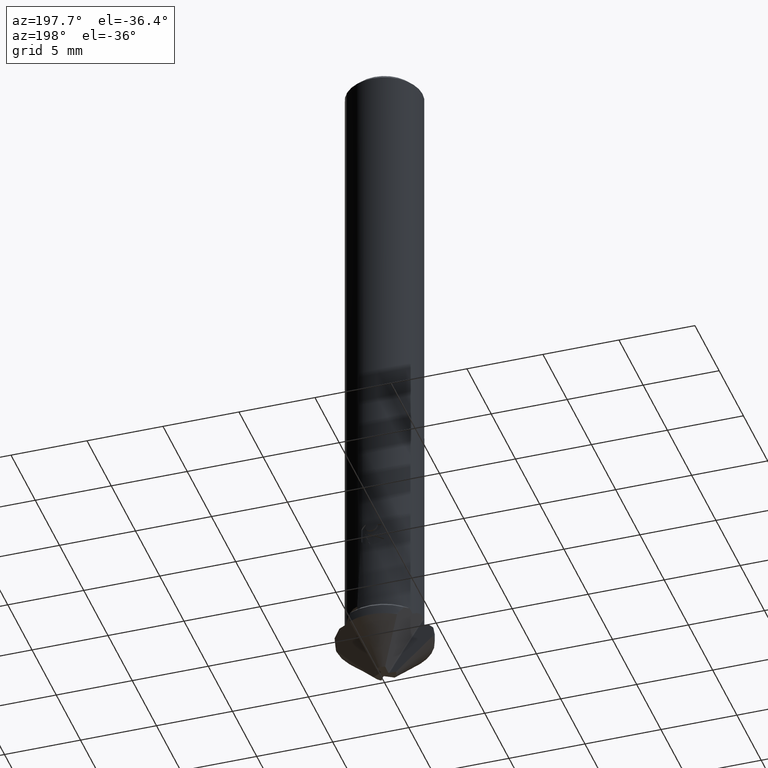
[diagram: clean part render]
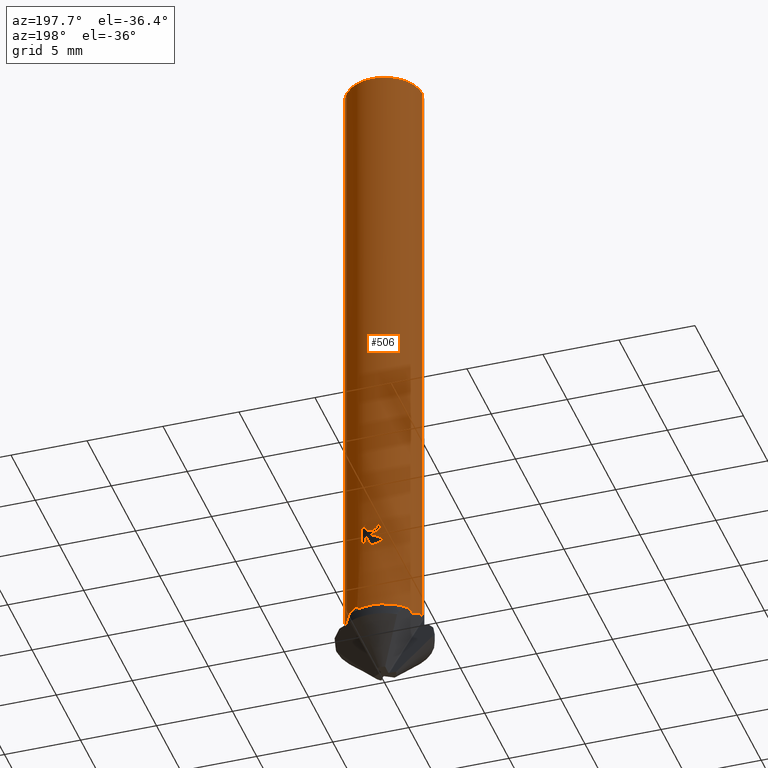
[diagram: same view with one face highlighted and labeled with its STEP entity id]
A machine part, auxiliary view. The second image highlights one B-rep face of the part: STEP entity #506.
In plain terms, the highlighted cylindrical surface (partial cylindrical patch) has radius 2.5 mm, axis along (-0, -0, 1).
Its self-contained STEP definition (entity closure, byte-faithful):
#468=EDGE_CURVE('',#576,#474,#1333,.T.);
#474=VERTEX_POINT('',#1339);
#488=EDGE_CURVE('',#936,#922,#1353,.T.);
#506=ADVANCED_FACE('',(#1371,#1372),#1373,.T.);
#560=VERTEX_POINT('',#1433);
#570=VERTEX_POINT('',#1443);
#576=VERTEX_POINT('',#1450);
#636=EDGE_CURVE('',#1162,#1082,#1516,.T.);
#638=VERTEX_POINT('',#1518);
#650=EDGE_CURVE('',#1196,#904,#1533,.T.);
#676=EDGE_CURVE('',#922,#966,#1560,.T.);
#750=EDGE_CURVE('',#1188,#1196,#1642,.T.);
#758=EDGE_CURVE('',#1116,#1120,#1651,.T.);
#760=EDGE_CURVE('',#1290,#1188,#1653,.T.);
#764=EDGE_CURVE('',#864,#560,#1657,.T.);
#782=EDGE_CURVE('',#560,#570,#1676,.T.);
#796=EDGE_CURVE('',#1004,#1116,#1692,.T.);
#838=VERTEX_POINT('',#1738);
#842=VERTEX_POINT('',#1742);
#864=VERTEX_POINT('',#1765);
#904=VERTEX_POINT('',#1808);
#922=VERTEX_POINT('',#1826);
#928=EDGE_CURVE('',#842,#1240,#1832,.T.);
#936=VERTEX_POINT('',#1841);
#956=EDGE_CURVE('',#1026,#1290,#1861,.T.);
#966=VERTEX_POINT('',#1874);
#1004=VERTEX_POINT('',#1913);
#1026=VERTEX_POINT('',#1937);
#1082=VERTEX_POINT('',#1996);
#1088=EDGE_CURVE('',#1170,#570,#2002,.T.);
#1098=EDGE_CURVE('',#904,#1162,#2012,.T.);
#1116=VERTEX_POINT('',#2032);
#1120=VERTEX_POINT('',#2037);
#1146=EDGE_CURVE('',#1158,#838,#2066,.T.);
#1158=VERTEX_POINT('',#2080);
#1162=VERTEX_POINT('',#2084);
#1170=VERTEX_POINT('',#2092);
#1172=EDGE_CURVE('',#474,#842,#2094,.T.);
#1178=EDGE_CURVE('',#638,#838,#2101,.T.);
#1188=VERTEX_POINT('',#2112);
#1196=VERTEX_POINT('',#2122);
#1216=EDGE_CURVE('',#638,#1170,#2146,.T.);
#1230=EDGE_CURVE('',#1082,#936,#2161,.T.);
#1240=VERTEX_POINT('',#2172);
#1250=EDGE_CURVE('',#864,#1004,#2184,.T.);
#1260=EDGE_CURVE('',#1240,#1026,#2194,.T.);
#1278=EDGE_CURVE('',#966,#576,#2214,.T.);
#1280=EDGE_CURVE('',#1158,#1120,#2216,.T.);
#1290=VERTEX_POINT('',#2227);
#1333=B_SPLINE_CURVE_WITH_KNOTS('',3,(#2293,#2294,#2295,#2296,#2297,#2298,#2299,#2300,#2301,#2302),.UNSPECIFIED.,.F.,.F.,(4,2,2,2,4),(3.09837550339328,3.44278385228406,3.78723916731241,4.13169448234076,4.47551218078378),.UNSPECIFIED.);
#1339=CARTESIAN_POINT('',(0.161168404231131,2.49479954013897,-36.6665738361236));
#1353=B_SPLINE_CURVE_WITH_KNOTS('',3,(#2353,#2354,#2355,#2356,#2357,#2358,#2359,#2360,#2361,#2362,#2363,#2364,#2365,#2366),.UNSPECIFIED.,.F.,.F.,(4,2,2,2,2,2,4),(1.7426107460822,1.9913632153039,2.24011568452559,2.48886815374729,2.73698656585005,2.98510497795281,3.23493590836227),.UNSPECIFIED.);
#1371=FACE_OUTER_BOUND('',#2392,.T.);
#1372=FACE_BOUND('',#2393,.T.);
#1373=CYLINDRICAL_SURFACE('',#2394,2.5);
#1433=CARTESIAN_POINT('',(2.5,3.06151588455594E-016,-41.64));
#1443=CARTESIAN_POINT('',(2.5,3.06151588455594E-016,-0.399999999999999));
#1450=CARTESIAN_POINT('',(-9.27653320671539E-016,2.5,-36.683902981203));
#1516=CIRCLE('',#2700,2.5);
#1518=CARTESIAN_POINT('',(-2.5,-3.06151588455594E-016,-0.399999999999999));
#1533=B_SPLINE_CURVE_WITH_KNOTS('',3,(#2718,#2719,#2720,#2721,#2722,#2723,#2724,#2725,#2726,#2727,#2728,#2729,#2730,#2731,#2732,#2733,#2734,#2735,#2736,#2737,#2738,#2739,#2740,#2741,#2742,#2743,#2744),.UNSPECIFIED.,.F.,.F.,(4,2,3,2,2,2,2,2,2,2,2,2,4),(-0.301503278454075,-0.150751639227038,0.0,0.150751639227038,0.301503278454075,0.452645086780626,0.603786895107177,0.754271619615112,0.904756344123047,1.05543488838393,1.20611343264482,1.35679197690571,1.5074705211666),.UNSPECIFIED.);
#1560=ELLIPSE('',#2778,2.78732108010715,2.5);
#1642=B_SPLINE_CURVE_WITH_KNOTS('',3,(#2970,#2971,#2972,#2973,#2974,#2975,#2976,#2977,#2978,#2979,#2980,#2981,#2982,#2983,#2984,#2985,#2986,#2987,#2988,#2989,#2990,#2991,#2992,#2993,#2994,#2995,#2996),.UNSPECIFIED.,.F.,.F.,(4,2,3,2,2,2,2,2,2,2,2,2,4),(-0.301503278454075,-0.150751639227038,0.0,0.150751639227038,0.301503278454075,0.452645086780626,0.603786895107177,0.754271619615112,0.904756344123047,1.05543488838393,1.20611343264482,1.35679197690571,1.5074705211666),.UNSPECIFIED.);
#1651=ELLIPSE('',#3009,71.6342708696101,2.5);
#1653=B_SPLINE_CURVE_WITH_KNOTS('',3,(#3012,#3013,#3014,#3015,#3016,#3017),.UNSPECIFIED.,.F.,.F.,(4,2,4),(0.344302197119824,0.688604394239647,1.03242207268003),.UNSPECIFIED.);
#1657=CIRCLE('',#3023,2.5);
#1676=LINE('',#3048,#3049);
#1692=B_SPLINE_CURVE_WITH_KNOTS('',3,(#3067,#3068,#3069,#3070,#3071,#3072,#3073,#3074,#3075,#3076,#3077,#3078,#3079,#3080),.UNSPECIFIED.,.F.,.F.,(4,2,2,2,2,2,4),(0.184157600930737,0.192742132728682,0.206598262560849,0.234310522225183,0.293125424812681,0.351940327400179,0.362202442003439),.UNSPECIFIED.);
#1738=CARTESIAN_POINT('',(-2.5,-1.18046230048316E-016,-41.1100794319298));
#1742=CARTESIAN_POINT('',(0.485311546392265,2.45244219155893,-35.7332739790272));
#1765=CARTESIAN_POINT('',(2.11553267240892,1.33211167398622,-41.64));
#1808=CARTESIAN_POINT('',(-0.270210525197664,2.48535435543353,-35.3573798608818));
#1826=CARTESIAN_POINT('',(0.318403909431595,2.47964089143139,-35.7946277612708));
#1832=LINE('',#3326,#3327);
#1841=CARTESIAN_POINT('',(2.94648960573711E-016,2.5,-35.8333778656602));
#1861=LINE('',#3438,#3439);
#1874=CARTESIAN_POINT('',(-0.742807086176167,2.38709816151881,-36.3178224420131));
#1913=CARTESIAN_POINT('',(1.11945875477982,2.23535502691336,-41.1139234402125));
#1937=CARTESIAN_POINT('',(0.742894482122777,2.38707096426385,-36.2723142805034));
#1996=CARTESIAN_POINT('',(-0.575040781099412,2.43296693361677,-35.1761789996285));
#2002=CIRCLE('',#3787,2.5);
#2012=B_SPLINE_CURVE_WITH_KNOTS('',3,(#3813,#3814,#3815,#3816,#3817,#3818,#3819,#3820,#3821,#3822,#3823,#3824,#3825,#3826,#3827,#3828,#3829,#3830,#3831,#3832,#3833,#3834,#3835,#3836,#3837,#3838,#3839),.UNSPECIFIED.,.F.,.F.,(4,2,3,2,2,2,2,2,2,2,2,2,4),(-0.301503278454075,-0.150751639227038,0.0,0.150751639227038,0.301503278454075,0.452645086780626,0.603786895107177,0.754271619615112,0.904756344123047,1.05543488838393,1.20611343264482,1.35679197690571,1.5074705211666),.UNSPECIFIED.);
#2032=CARTESIAN_POINT('',(1.05679381825682,2.26565373031586,-41.271066367513));
#2037=CARTESIAN_POINT('',(1.06846990097143,2.26017080565123,-41.64));
#2066=ELLIPSE('',#3929,5.00306602403646,2.5);
#2080=CARTESIAN_POINT('',(-2.21140888655434,1.166049199849,-41.64));
#2084=CARTESIAN_POINT('',(-0.312407772973711,2.48040347189436,-35.1761789996285));
#2092=CARTESIAN_POINT('',(0.0,2.5,-0.399999999999999));
#2094=ELLIPSE('',#3979,7.61998643342443,2.5);
#2101=LINE('',#3987,#3988);
#2112=CARTESIAN_POINT('',(0.444128737768459,2.46023366050629,-35.0000001538183));
#2122=CARTESIAN_POINT('',(-5.97332878342138E-015,2.5,-35.5684826743449));
#2146=CIRCLE('',#4061,2.5);
#2161=B_SPLINE_CURVE_WITH_KNOTS('',3,(#4084,#4085,#4086,#4087,#4088,#4089,#4090,#4091,#4092,#4093,#4094,#4095,#4096,#4097),.UNSPECIFIED.,.F.,.F.,(4,2,2,2,2,2,4),(1.7426107460822,1.9913632153039,2.24011568452559,2.48886815374729,2.73698656585005,2.98510497795281,3.23493590836227),.UNSPECIFIED.);
#2172=CARTESIAN_POINT('',(0.485311546392265,2.45244219155893,-36.5326306581503));
#2184=ELLIPSE('',#4147,5.00306602403646,2.5);
#2194=B_SPLINE_CURVE_WITH_KNOTS('',3,(#4162,#4163,#4164,#4165,#4166,#4167),.UNSPECIFIED.,.F.,.F.,(4,2,4),(4.47551170548333,4.81932937236525,5.16363155748401),.UNSPECIFIED.);
#2214=B_SPLINE_CURVE_WITH_KNOTS('',3,(#4193,#4194,#4195,#4196,#4197,#4198,#4199,#4200,#4201,#4202),.UNSPECIFIED.,.F.,.F.,(4,2,2,2,4),(3.09837550339328,3.44278385228406,3.78723916731241,4.13169448234076,4.47551218078378),.UNSPECIFIED.);
#2216=CIRCLE('',#4205,2.5);
#2227=CARTESIAN_POINT('',(0.742894482122776,2.38707096426385,-35.2861380208401));
#2293=CARTESIAN_POINT('',(-0.851106475177585,2.35066326127559,-36.1269024909624));
#2294=CARTESIAN_POINT('',(-0.804803660480817,2.36742814224895,-36.2381528911139));
#2295=CARTESIAN_POINT('',(-0.735407248289793,2.39081527433525,-36.3391384186257));
#2296=CARTESIAN_POINT('',(-0.575994604090084,2.43414329353883,-36.4986257124624));
#2297=CARTESIAN_POINT('',(-0.474957233154073,2.45704682104698,-36.5681296877785));
#2298=CARTESIAN_POINT('',(-0.252286582505711,2.48978210591063,-36.6608653102068));
#2299=CARTESIAN_POINT('',(-0.130572918570901,2.49922667773841,-36.6840401886507));
#2300=CARTESIAN_POINT('',(0.0988468623720696,2.50067267150162,-36.6840401886507));
#2301=CARTESIAN_POINT('',(0.220461194614961,2.49279132706837,-36.6609421952063));
#2302=CARTESIAN_POINT('',(0.331769901216233,2.47788795804955,-36.6146383873412));
#2353=CARTESIAN_POINT('',(-0.524781511497588,2.44430038358429,-34.9291582621933));
#2354=CARTESIAN_POINT('',(-0.558417432003994,2.4370788892112,-35.010136782394));
#2355=CARTESIAN_POINT('',(-0.575060566651156,2.4329622571431,-35.0983613221402));
#2356=CARTESIAN_POINT('',(-0.575060566651156,2.4329622571431,-35.2641963016213));
#2357=CARTESIAN_POINT('',(-0.558417432003994,2.4370788892112,-35.3524208413676));
#2358=CARTESIAN_POINT('',(-0.491145590991195,2.4515218779574,-35.5143778817689));
#2359=CARTESIAN_POINT('',(-0.440532304120222,2.4615878504116,-35.5881399013442));
#2360=CARTESIAN_POINT('',(-0.324026998725568,2.47961130516434,-35.7044707001471));
#2361=CARTESIAN_POINT('',(-0.250316671775757,2.48875757251386,-35.7549419914583));
#2362=CARTESIAN_POINT('',(-0.0885452067588335,2.49974647452028,-35.8219834671733));
#2363=CARTESIAN_POINT('',(-0.000462669095395662,2.50136764412902,-35.838538129503));
#2364=CARTESIAN_POINT('',(0.165430701833303,2.49591020226218,-35.838538129503));
#2365=CARTESIAN_POINT('',(0.253778343542199,2.48842727297033,-35.821778246351));
#2366=CARTESIAN_POINT('',(0.334735715041448,2.47748905165607,-35.7880859413538));
#2392=EDGE_LOOP('',(#4254,#4255,#4256,#4257,#4258,#4259,#4260,#4261,#4262,#4263));
#2393=EDGE_LOOP('',(#4264,#4265,#4266,#4267,#4268,#4269,#4270,#4271,#4272,#4273,#4274,#4275,#4276,#4277));
#2394=AXIS2_PLACEMENT_3D('',#4278,#4279,#4280);
#2700=AXIS2_PLACEMENT_3D('',#4439,#4440,#4441);
#2718=CARTESIAN_POINT('',(0.369548811999049,2.47253587952735,-34.8964786191432));
#2719=CARTESIAN_POINT('',(0.404861108035139,2.4672580523552,-34.9318382529565));
#2720=CARTESIAN_POINT('',(0.435531120364256,2.46185739730343,-34.976630107659));
#2721=CARTESIAN_POINT('',(0.476270835819975,2.45430138702185,-35.0749257442502));
#2722=CARTESIAN_POINT('',(0.48633387941076,2.45223966156191,-35.128439460941));
#2723=CARTESIAN_POINT('',(0.48633387941076,2.45223966156191,-35.17869000735));
#2724=CARTESIAN_POINT('',(0.48633387941076,2.45223966156191,-35.228940553759));
#2725=CARTESIAN_POINT('',(0.476270835819975,2.45430138702185,-35.2824542704499));
#2726=CARTESIAN_POINT('',(0.435531120364256,2.46185739730343,-35.3807499070411));
#2727=CARTESIAN_POINT('',(0.404861108035139,2.4672580523552,-35.4255417617436));
#2728=CARTESIAN_POINT('',(0.334145122152473,2.47782736655147,-35.4963525456982));
#2729=CARTESIAN_POINT('',(0.289305325260424,2.48369608192703,-35.527107641238));
#2730=CARTESIAN_POINT('',(0.190892767318426,2.49319147877631,-35.5679670750413));
#2731=CARTESIAN_POINT('',(0.137309222045896,2.49673474415629,-35.5780647804754));
#2732=CARTESIAN_POINT('',(0.0368278859231848,2.50023196731992,-35.5780647804754));
#2733=CARTESIAN_POINT('',(-0.0166543724400533,2.50042853478556,-35.5680454936543));
#2734=CARTESIAN_POINT('',(-0.115011831478481,2.49783756564824,-35.5273175845606));
#2735=CARTESIAN_POINT('',(-0.159890289496504,2.49513488917208,-35.4966114745342));
#2736=CARTESIAN_POINT('',(-0.230796640598874,2.48957811407573,-35.425765774382));
#2737=CARTESIAN_POINT('',(-0.261552287839775,2.48636524822382,-35.3808734168709));
#2738=CARTESIAN_POINT('',(-0.302363265727945,2.48173290383039,-35.2824513169887));
#2739=CARTESIAN_POINT('',(-0.312415666839968,2.48040247764611,-35.2289161887703));
#2740=CARTESIAN_POINT('',(-0.312415666839968,2.48040247764611,-35.1284638259297));
#2741=CARTESIAN_POINT('',(-0.302363265727943,2.48173290383039,-35.0749286977114));
#2742=CARTESIAN_POINT('',(-0.261552287839771,2.48636524822382,-34.9765065978292));
#2743=CARTESIAN_POINT('',(-0.230796640598876,2.48957811407573,-34.931614240318));
#2744=CARTESIAN_POINT('',(-0.195320648434777,2.49235828971178,-34.8961685931456));
#2778=AXIS2_PLACEMENT_3D('',#4491,#4492,#4493);
#2970=CARTESIAN_POINT('',(0.369548811999049,2.47253587952735,-34.8964786191432));
#2971=CARTESIAN_POINT('',(0.404861108035139,2.4672580523552,-34.9318382529565));
#2972=CARTESIAN_POINT('',(0.435531120364256,2.46185739730343,-34.976630107659));
#2973=CARTESIAN_POINT('',(0.476270835819975,2.45430138702185,-35.0749257442502));
#2974=CARTESIAN_POINT('',(0.48633387941076,2.45223966156191,-35.128439460941));
#2975=CARTESIAN_POINT('',(0.48633387941076,2.45223966156191,-35.17869000735));
#2976=CARTESIAN_POINT('',(0.48633387941076,2.45223966156191,-35.228940553759));
#2977=CARTESIAN_POINT('',(0.476270835819975,2.45430138702185,-35.2824542704499));
#2978=CARTESIAN_POINT('',(0.435531120364256,2.46185739730343,-35.3807499070411));
#2979=CARTESIAN_POINT('',(0.404861108035139,2.4672580523552,-35.4255417617436));
#2980=CARTESIAN_POINT('',(0.334145122152473,2.47782736655147,-35.4963525456982));
#2981=CARTESIAN_POINT('',(0.289305325260424,2.48369608192703,-35.527107641238));
#2982=CARTESIAN_POINT('',(0.190892767318426,2.49319147877631,-35.5679670750413));
#2983=CARTESIAN_POINT('',(0.137309222045896,2.49673474415629,-35.5780647804754));
#2984=CARTESIAN_POINT('',(0.0368278859231848,2.50023196731992,-35.5780647804754));
#2985=CARTESIAN_POINT('',(-0.0166543724400533,2.50042853478556,-35.5680454936543));
#2986=CARTESIAN_POINT('',(-0.115011831478481,2.49783756564824,-35.5273175845606));
#2987=CARTESIAN_POINT('',(-0.159890289496504,2.49513488917208,-35.4966114745342));
#2988=CARTESIAN_POINT('',(-0.230796640598874,2.48957811407573,-35.425765774382));
#2989=CARTESIAN_POINT('',(-0.261552287839775,2.48636524822382,-35.3808734168709));
#2990=CARTESIAN_POINT('',(-0.302363265727945,2.48173290383039,-35.2824513169887));
#2991=CARTESIAN_POINT('',(-0.312415666839968,2.48040247764611,-35.2289161887703));
#2992=CARTESIAN_POINT('',(-0.312415666839968,2.48040247764611,-35.1284638259297));
#2993=CARTESIAN_POINT('',(-0.302363265727943,2.48173290383039,-35.0749286977114));
#2994=CARTESIAN_POINT('',(-0.261552287839771,2.48636524822382,-34.9765065978292));
#2995=CARTESIAN_POINT('',(-0.230796640598876,2.48957811407573,-34.931614240318));
#2996=CARTESIAN_POINT('',(-0.195320648434777,2.49235828971178,-34.8961685931456));
#3009=AXIS2_PLACEMENT_3D('',#4606,#4607,#4608);
#3012=CARTESIAN_POINT('',(0.819572248707612,2.36184278247904,-35.4315007254576));
#3013=CARTESIAN_POINT('',(0.773235238386737,2.37792196184694,-35.3201866872608));
#3014=CARTESIAN_POINT('',(0.703754030298735,2.40031887098004,-35.2191012528167));
#3015=CARTESIAN_POINT('',(0.544155566616611,2.44144957158242,-35.05957475698));
#3016=CARTESIAN_POINT('',(0.443078437625546,2.46298461934583,-34.990117951483));
#3017=CARTESIAN_POINT('',(0.33176973658968,2.47788798009176,-34.9438141461958));
#3023=AXIS2_PLACEMENT_3D('',#4612,#4613,#4614);
#3048=CARTESIAN_POINT('',(2.5,3.06151588455594E-016,-40.82));
#3049=VECTOR('',#4627,1.0);
#3067=CARTESIAN_POINT('',(1.11945875477982,2.23535502691336,-41.1139234402125));
#3068=CARTESIAN_POINT('',(1.11693606443682,2.23661838228915,-41.1141415635389));
#3069=CARTESIAN_POINT('',(1.11444545191005,2.23786028227054,-41.1146868102748));
#3070=CARTESIAN_POINT('',(1.1080962719998,2.24101358464992,-41.1168822783324));
#3071=CARTESIAN_POINT('',(1.10433753422275,2.24286731841524,-41.1190137653241));
#3072=CARTESIAN_POINT('',(1.0938374500817,2.24801699691509,-41.1270811254951));
#3073=CARTESIAN_POINT('',(1.08786706242935,2.2509046387973,-41.1347420055017));
#3074=CARTESIAN_POINT('',(1.0733978304308,2.25786097566766,-41.1587030992715));
#3075=CARTESIAN_POINT('',(1.0668940735108,2.26091992752144,-41.1784935888278));
#3076=CARTESIAN_POINT('',(1.05842558371533,2.26489672305205,-41.2196343927208));
#3077=CARTESIAN_POINT('',(1.05662864158571,2.26573076815864,-41.2410271209171));
#3078=CARTESIAN_POINT('',(1.05662864158571,2.26573076815864,-41.264052793314));
#3079=CARTESIAN_POINT('',(1.05668194620784,2.26570591202757,-41.2675362337877));
#3080=CARTESIAN_POINT('',(1.05679381825682,2.26565373031586,-41.271066367513));
#3326=CARTESIAN_POINT('',(0.485311546392265,2.45244219155893,-36.1329523185887));
#3327=VECTOR('',#4782,1.0);
#3438=CARTESIAN_POINT('',(0.742894482122777,2.38707096426385,-35.7792261506717));
#3439=VECTOR('',#4809,1.0);
#3787=AXIS2_PLACEMENT_3D('',#4938,#4939,#4940);
#3813=CARTESIAN_POINT('',(0.369548811999049,2.47253587952735,-34.8964786191432));
#3814=CARTESIAN_POINT('',(0.404861108035139,2.4672580523552,-34.9318382529565));
#3815=CARTESIAN_POINT('',(0.435531120364256,2.46185739730343,-34.976630107659));
#3816=CARTESIAN_POINT('',(0.476270835819975,2.45430138702185,-35.0749257442502));
#3817=CARTESIAN_POINT('',(0.48633387941076,2.45223966156191,-35.128439460941));
#3818=CARTESIAN_POINT('',(0.48633387941076,2.45223966156191,-35.17869000735));
#3819=CARTESIAN_POINT('',(0.48633387941076,2.45223966156191,-35.228940553759));
#3820=CARTESIAN_POINT('',(0.476270835819975,2.45430138702185,-35.2824542704499));
#3821=CARTESIAN_POINT('',(0.435531120364256,2.46185739730343,-35.3807499070411));
#3822=CARTESIAN_POINT('',(0.404861108035139,2.4672580523552,-35.4255417617436));
#3823=CARTESIAN_POINT('',(0.334145122152473,2.47782736655147,-35.4963525456982));
#3824=CARTESIAN_POINT('',(0.289305325260424,2.48369608192703,-35.527107641238));
#3825=CARTESIAN_POINT('',(0.190892767318426,2.49319147877631,-35.5679670750413));
#3826=CARTESIAN_POINT('',(0.137309222045896,2.49673474415629,-35.5780647804754));
#3827=CARTESIAN_POINT('',(0.0368278859231848,2.50023196731992,-35.5780647804754));
#3828=CARTESIAN_POINT('',(-0.0166543724400533,2.50042853478556,-35.5680454936543));
#3829=CARTESIAN_POINT('',(-0.115011831478481,2.49783756564824,-35.5273175845606));
#3830=CARTESIAN_POINT('',(-0.159890289496504,2.49513488917208,-35.4966114745342));
#3831=CARTESIAN_POINT('',(-0.230796640598874,2.48957811407573,-35.425765774382));
#3832=CARTESIAN_POINT('',(-0.261552287839775,2.48636524822382,-35.3808734168709));
#3833=CARTESIAN_POINT('',(-0.302363265727945,2.48173290383039,-35.2824513169887));
#3834=CARTESIAN_POINT('',(-0.312415666839968,2.48040247764611,-35.2289161887703));
#3835=CARTESIAN_POINT('',(-0.312415666839968,2.48040247764611,-35.1284638259297));
#3836=CARTESIAN_POINT('',(-0.302363265727943,2.48173290383039,-35.0749286977114));
#3837=CARTESIAN_POINT('',(-0.261552287839771,2.48636524822382,-34.9765065978292));
#3838=CARTESIAN_POINT('',(-0.230796640598876,2.48957811407573,-34.931614240318));
#3839=CARTESIAN_POINT('',(-0.195320648434777,2.49235828971178,-34.8961685931456));
#3929=AXIS2_PLACEMENT_3D('',#5011,#5012,#5013);
#3979=AXIS2_PLACEMENT_3D('',#5038,#5039,#5040);
#3987=CARTESIAN_POINT('',(-2.5,-3.06151588455594E-016,-40.82));
#3988=VECTOR('',#5048,1.0);
#4061=AXIS2_PLACEMENT_3D('',#5118,#5119,#5120);
#4084=CARTESIAN_POINT('',(-0.524781511497588,2.44430038358429,-34.9291582621933));
#4085=CARTESIAN_POINT('',(-0.558417432003994,2.4370788892112,-35.010136782394));
#4086=CARTESIAN_POINT('',(-0.575060566651156,2.4329622571431,-35.0983613221402));
#4087=CARTESIAN_POINT('',(-0.575060566651156,2.4329622571431,-35.2641963016213));
#4088=CARTESIAN_POINT('',(-0.558417432003994,2.4370788892112,-35.3524208413676));
#4089=CARTESIAN_POINT('',(-0.491145590991195,2.4515218779574,-35.5143778817689));
#4090=CARTESIAN_POINT('',(-0.440532304120222,2.4615878504116,-35.5881399013442));
#4091=CARTESIAN_POINT('',(-0.324026998725568,2.47961130516434,-35.7044707001471));
#4092=CARTESIAN_POINT('',(-0.250316671775757,2.48875757251386,-35.7549419914583));
#4093=CARTESIAN_POINT('',(-0.0885452067588335,2.49974647452028,-35.8219834671733));
#4094=CARTESIAN_POINT('',(-0.000462669095395662,2.50136764412902,-35.838538129503));
#4095=CARTESIAN_POINT('',(0.165430701833303,2.49591020226218,-35.838538129503));
#4096=CARTESIAN_POINT('',(0.253778343542199,2.48842727297033,-35.821778246351));
#4097=CARTESIAN_POINT('',(0.334735715041448,2.47748905165607,-35.7880859413538));
#4147=AXIS2_PLACEMENT_3D('',#5169,#5170,#5171);
#4162=CARTESIAN_POINT('',(0.331769749005721,2.47788797842935,-36.6146381461851));
#4163=CARTESIAN_POINT('',(0.443078446249926,2.46298461762336,-36.5683343424503));
#4164=CARTESIAN_POINT('',(0.544155571787289,2.44144957033601,-36.4988775392922));
#4165=CARTESIAN_POINT('',(0.703754029929931,2.40031887098883,-36.3393510488815));
#4166=CARTESIAN_POINT('',(0.773235235584424,2.37792196272201,-36.2382656179319));
#4167=CARTESIAN_POINT('',(0.81957224427909,2.36184278401576,-36.1269515835893));
#4193=CARTESIAN_POINT('',(-0.851106475177585,2.35066326127559,-36.1269024909624));
#4194=CARTESIAN_POINT('',(-0.804803660480817,2.36742814224895,-36.2381528911139));
#4195=CARTESIAN_POINT('',(-0.735407248289793,2.39081527433525,-36.3391384186257));
#4196=CARTESIAN_POINT('',(-0.575994604090084,2.43414329353883,-36.4986257124624));
#4197=CARTESIAN_POINT('',(-0.474957233154073,2.45704682104698,-36.5681296877785));
#4198=CARTESIAN_POINT('',(-0.252286582505711,2.48978210591063,-36.6608653102068));
#4199=CARTESIAN_POINT('',(-0.130572918570901,2.49922667773841,-36.6840401886507));
#4200=CARTESIAN_POINT('',(0.0988468623720696,2.50067267150162,-36.6840401886507));
#4201=CARTESIAN_POINT('',(0.220461194614961,2.49279132706837,-36.6609421952063));
#4202=CARTESIAN_POINT('',(0.331769901216233,2.47788795804955,-36.6146383873412));
#4205=AXIS2_PLACEMENT_3D('',#5212,#5213,#5214);
#4254=ORIENTED_EDGE('',*,*,#1178,.F.);
#4255=ORIENTED_EDGE('',*,*,#1216,.T.);
#4256=ORIENTED_EDGE('',*,*,#1088,.T.);
#4257=ORIENTED_EDGE('',*,*,#782,.F.);
#4258=ORIENTED_EDGE('',*,*,#764,.F.);
#4259=ORIENTED_EDGE('',*,*,#1250,.T.);
#4260=ORIENTED_EDGE('',*,*,#796,.T.);
#4261=ORIENTED_EDGE('',*,*,#758,.T.);
#4262=ORIENTED_EDGE('',*,*,#1280,.F.);
#4263=ORIENTED_EDGE('',*,*,#1146,.T.);
#4264=ORIENTED_EDGE('',*,*,#676,.T.);
#4265=ORIENTED_EDGE('',*,*,#1278,.T.);
#4266=ORIENTED_EDGE('',*,*,#468,.T.);
#4267=ORIENTED_EDGE('',*,*,#1172,.T.);
#4268=ORIENTED_EDGE('',*,*,#928,.T.);
#4269=ORIENTED_EDGE('',*,*,#1260,.T.);
#4270=ORIENTED_EDGE('',*,*,#956,.T.);
#4271=ORIENTED_EDGE('',*,*,#760,.T.);
#4272=ORIENTED_EDGE('',*,*,#750,.T.);
#4273=ORIENTED_EDGE('',*,*,#650,.T.);
#4274=ORIENTED_EDGE('',*,*,#1098,.T.);
#4275=ORIENTED_EDGE('',*,*,#636,.T.);
#4276=ORIENTED_EDGE('',*,*,#1230,.T.);
#4277=ORIENTED_EDGE('',*,*,#488,.T.);
#4278=CARTESIAN_POINT('',(0.0,0.0,-40.82));
#4279=DIRECTION('',(-0.0,-0.0,1.0));
#4280=DIRECTION('',(-1.0,0.0,0.0));
#4439=CARTESIAN_POINT('',(0.0,0.0,-35.1761789996285));
#4440=DIRECTION('',(0.0,0.0,1.0));
#4441=DIRECTION('',(-1.0,0.0,0.0));
#4491=CARTESIAN_POINT('',(0.0,0.0,-35.9516061872687));
#4492=DIRECTION('',(-0.442195774284071,0.0,0.896918556617774));
#4493=DIRECTION('',(-0.896918556617774,0.0,-0.442195774284071));
#4606=CARTESIAN_POINT('',(0.0,0.0,-45.01));
#4607=DIRECTION('',(-0.882409725041803,0.469185573394539,-0.0348994967025007));
#4608=DIRECTION('',(-0.030814426605461,0.016384321257364,0.999390827019096));
#4612=CARTESIAN_POINT('',(0.0,0.0,-41.64));
#4613=DIRECTION('',(0.0,0.0,-1.0));
#4614=DIRECTION('',(-1.0,0.0,0.0));
#4627=DIRECTION('',(-0.0,-0.0,1.0));
#4782=DIRECTION('',(0.0,0.0,-1.0));
#4809=DIRECTION('',(-0.0,-0.0,1.0));
#4938=CARTESIAN_POINT('',(0.0,0.0,-0.399999999999999));
#4939=DIRECTION('',(0.0,0.0,-1.0));
#4940=DIRECTION('',(0.0,1.0,0.0));
#5011=CARTESIAN_POINT('',(0.0,0.0,-45.4432782267687));
#5012=DIRECTION('',(0.866108656975691,0.0127324361655803,0.499693585491204));
#5013=DIRECTION('',(-0.499639599429131,-0.00734507068401934,0.866202240021893));
#5038=CARTESIAN_POINT('',(0.0,0.0,-37.1306232916651));
#5039=DIRECTION('',(0.944648353914092,0.0,-0.328084573619969));
#5040=DIRECTION('',(-0.328084573619969,0.0,-0.944648353914092));
#5048=DIRECTION('',(0.0,0.0,-1.0));
#5118=CARTESIAN_POINT('',(0.0,0.0,-0.399999999999999));
#5119=DIRECTION('',(0.0,0.0,-1.0));
#5120=DIRECTION('',(0.0,1.0,0.0));
#5169=CARTESIAN_POINT('',(0.0,0.0,-45.4432782267687));
#5170=DIRECTION('',(-0.422027715316389,-0.75643831746136,0.499693585491204));
#5171=DIRECTION('',(-0.243458781909612,-0.436373121184318,-0.866202240021893));
#5212=CARTESIAN_POINT('',(0.0,0.0,-41.64));
#5213=DIRECTION('',(0.0,0.0,-1.0));
#5214=DIRECTION('',(-1.0,0.0,0.0));